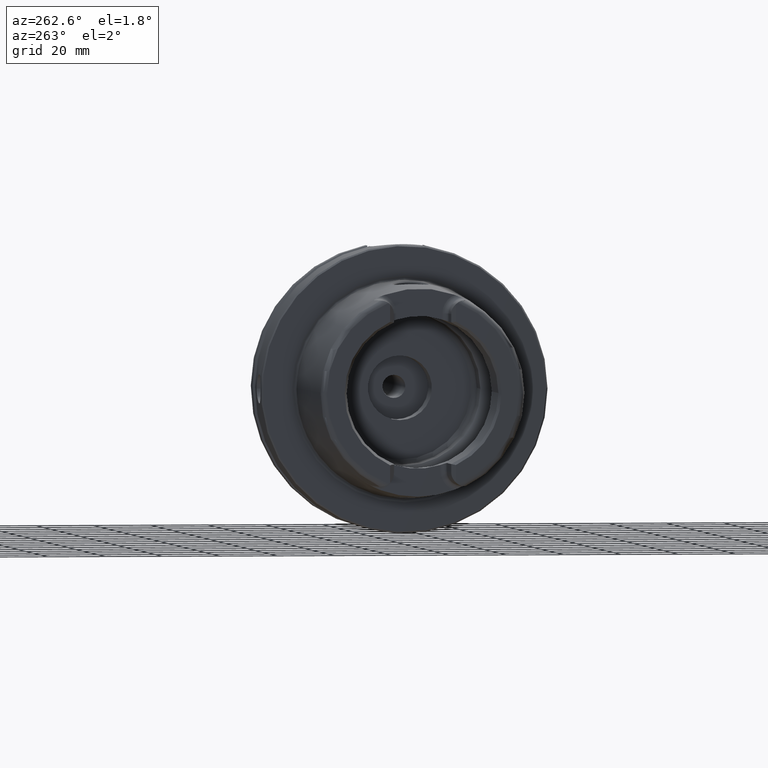
[diagram: clean part render]
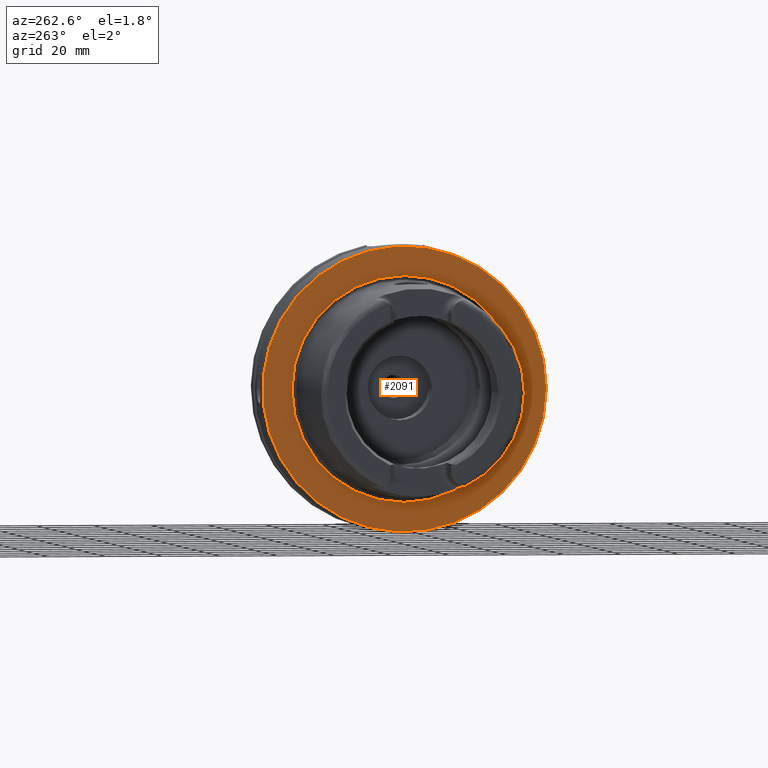
[diagram: same view with one face highlighted and labeled with its STEP entity id]
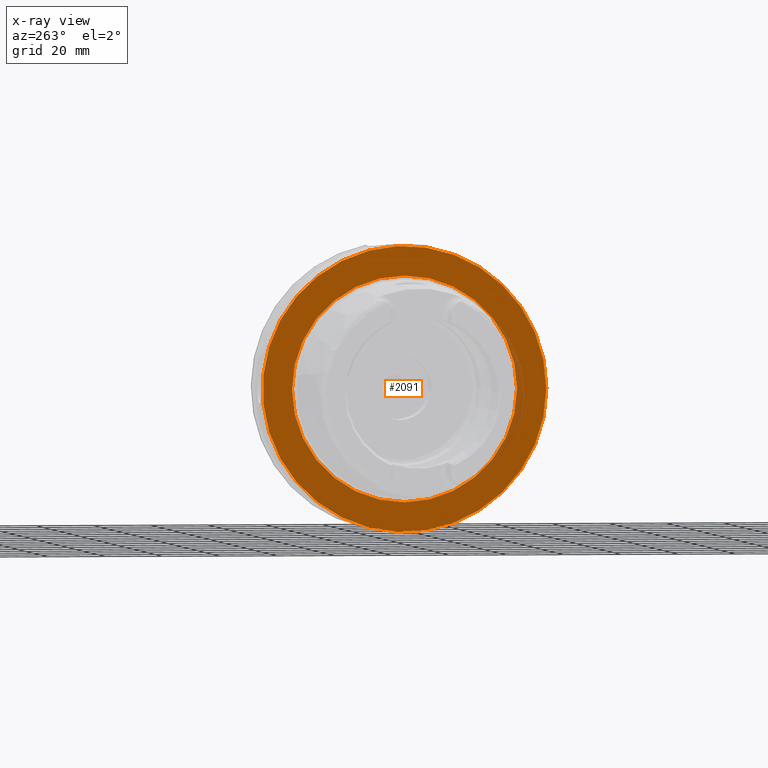
[diagram: x-ray of the same camera — body ghosted, the highlighted face saturated]
A machine part, auxiliary view. The second image highlights one B-rep face of the part: STEP entity #2091.
The next image is the same camera in x-ray: the body ghosted, the highlighted face saturated — about 5% of this face is hidden behind the body in this view.
In plain terms, the highlighted planar face has unit normal (-1, 0, 0).
Its self-contained STEP definition (entity closure, byte-faithful):
#97=FACE_BOUND('',#449,.T.);
#133=PLANE('',#2362);
#316=FACE_OUTER_BOUND('',#448,.T.);
#448=EDGE_LOOP('',(#1915));
#449=EDGE_LOOP('',(#1916));
#796=CIRCLE('',#2361,39.2747800249997);
#797=CIRCLE('',#2363,49.5);
#1009=VERTEX_POINT('',#4502);
#1010=VERTEX_POINT('',#4506);
#1316=EDGE_CURVE('',#1009,#1009,#796,.T.);
#1317=EDGE_CURVE('',#1010,#1010,#797,.T.);
#1915=ORIENTED_EDGE('',*,*,#1317,.F.);
#1916=ORIENTED_EDGE('',*,*,#1316,.T.);
#2091=ADVANCED_FACE('',(#316,#97),#133,.T.);
#2361=AXIS2_PLACEMENT_3D('',#4504,#2962,#2963);
#2362=AXIS2_PLACEMENT_3D('',#4505,#2964,#2965);
#2363=AXIS2_PLACEMENT_3D('',#4507,#2966,#2967);
#2962=DIRECTION('center_axis',(1.,0.,0.));
#2963=DIRECTION('ref_axis',(0.,0.,-1.));
#2964=DIRECTION('center_axis',(-1.,0.,0.));
#2965=DIRECTION('ref_axis',(0.,0.,1.));
#2966=DIRECTION('center_axis',(1.,0.,0.));
#2967=DIRECTION('ref_axis',(0.,0.,-1.));
#4502=CARTESIAN_POINT('',(-1.04950770296597E-15,-39.2747800249997,-4.80977336448322E-15));
#4504=CARTESIAN_POINT('Origin',(0.,0.,0.));
#4505=CARTESIAN_POINT('Origin',(0.,49.5,0.));
#4506=CARTESIAN_POINT('',(1.28369537222284E-15,-49.5,-6.0620016557794E-15));
#4507=CARTESIAN_POINT('Origin',(0.,0.,0.));